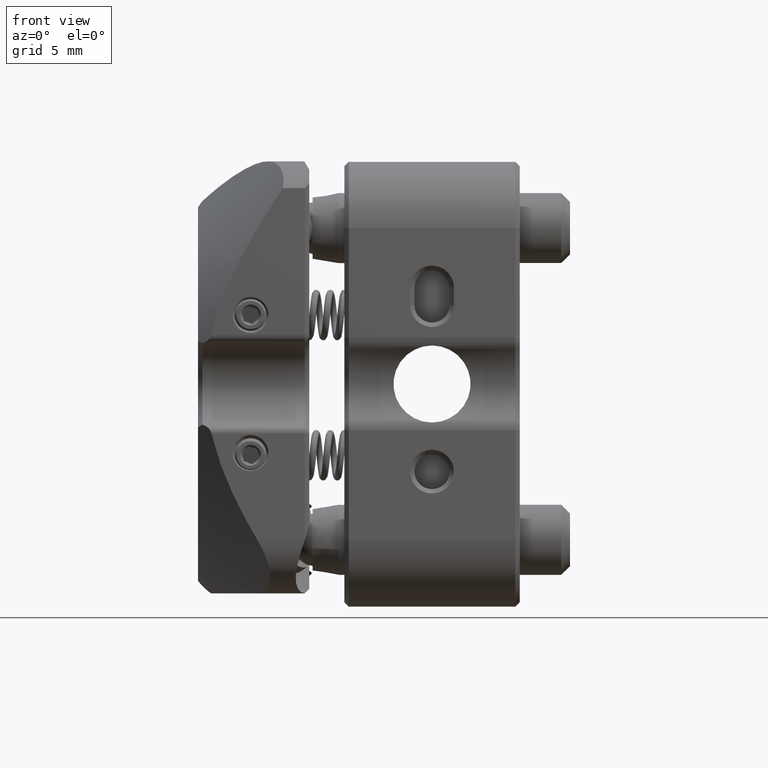
[diagram: clean part render]
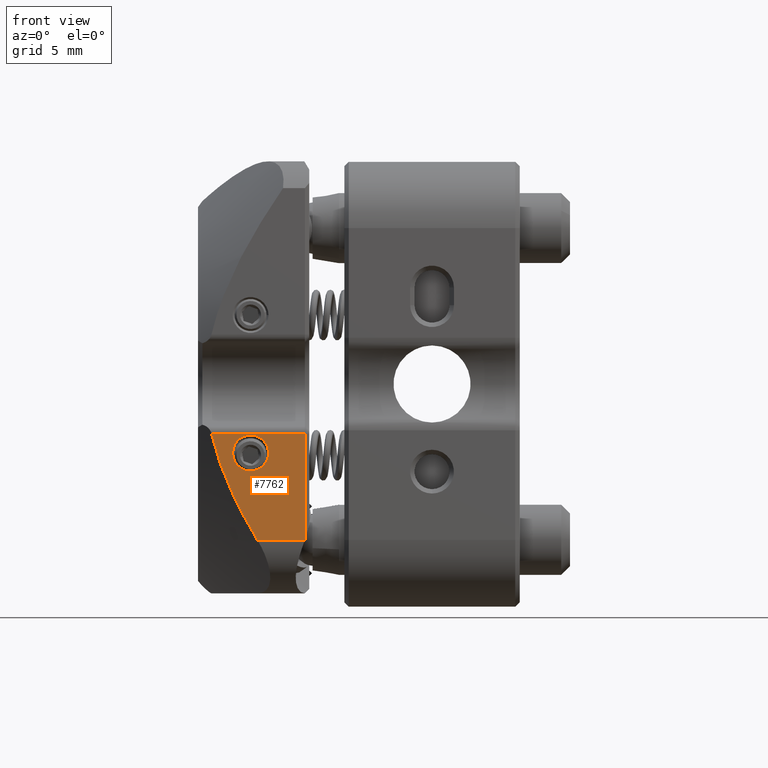
[diagram: same view with one face highlighted and labeled with its STEP entity id]
A machine part, front view. The second image highlights one B-rep face of the part: STEP entity #7762.
In plain terms, the highlighted planar face has unit normal (0, 1, 0).
Its self-contained STEP definition (entity closure, byte-faithful):
#635 = ORIENTED_EDGE ( 'NONE', *, *, #14830, .F. ) ;
#713 = EDGE_CURVE ( 'NONE', #8331, #30401, #36698, .T. ) ;
#2741 = CIRCLE ( 'NONE', #12016, 1.024999999926149208 ) ;
#3587 = CARTESIAN_POINT ( 'NONE',  ( -58.94746600689560978, -11.94000000000000128, -8.900000000000158451 ) ) ;
#3929 = EDGE_CURVE ( 'NONE', #23226, #31666, #31287, .T. ) ;
#5310 = CARTESIAN_POINT ( 'NONE',  ( -7.254598714394190573, -11.94000000000189132, -8.893816367047600480 ) ) ;
#5754 = CARTESIAN_POINT ( 'NONE',  ( -10.35000000000000142, -11.93999999996174921, -3.935000000000161258 ) ) ;
#7484 = EDGE_CURVE ( 'NONE', #31666, #16604, #12449, .T. ) ;
#7762 = ADVANCED_FACE ( 'NONE', ( #24510, #14353 ), #43868, .F. ) ;
#7938 = B_SPLINE_CURVE_WITH_KNOTS ( 'NONE', 3,
 ( #7975, #5310, #15700, #20036 ),
 .UNSPECIFIED., .F., .F.,
 ( 4, 4 ),
 ( 1.340562067596409706E-14, 1.976274407696420208E-05 ),
 .UNSPECIFIED. ) ;
#7975 = CARTESIAN_POINT ( 'NONE',  ( -7.256870038091325803, -11.93999999999999950, -8.900000000012738610 ) ) ;
#7991 = EDGE_LOOP ( 'NONE', ( #20472 ) ) ;
#8331 = VERTEX_POINT ( 'NONE', #11843 ) ;
#9785 = CARTESIAN_POINT ( 'NONE',  ( -58.94746600689560978, -11.94000000000000483, 11.17333090024185616 ) ) ;
#10089 = DIRECTION ( 'NONE',  ( 1.000000000000000000, -1.692413147416383553E-15, 0.000000000000000000 ) ) ;
#10736 = DIRECTION ( 'NONE',  ( 0.000000000000000000, 1.000000000000000000, 2.154951733599939797E-16 ) ) ;
#11641 = EDGE_CURVE ( 'NONE', #8331, #16604, #7938, .T. ) ;
#11843 = CARTESIAN_POINT ( 'NONE',  ( -7.256870038091325803, -11.93999999999999950, -8.900000000012738610 ) ) ;
#12016 = AXIS2_PLACEMENT_3D ( 'NONE', #5754, #31371, #10089 ) ;
#12263 = VECTOR ( 'NONE', #28248, 1000.000000000000000 ) ;
#12449 = LINE ( 'NONE', #47026, #24850 ) ;
#12996 = CARTESIAN_POINT ( 'NONE',  ( -9.957934998798871007, -11.94000000000000128, -8.900000000000158451 ) ) ;
#13358 = CARTESIAN_POINT ( 'NONE',  ( -7.249999999999600320, -11.93999999999957673, -2.828427124746347943 ) ) ;
#14353 = FACE_BOUND ( 'NONE', #7991, .T. ) ;
#14830 = EDGE_CURVE ( 'NONE', #30401, #23226, #15106, .T. ) ;
#15106 = B_SPLINE_CURVE_WITH_KNOTS ( 'NONE', 3,
 ( #43973, #29449, #40336, #21943, #36703, #18563 ),
 .UNSPECIFIED., .F., .F.,
 ( 4, 2, 4 ),
 ( 0.000000000000000000, 0.003306695262776504236, 0.006613390525553008471 ),
 .UNSPECIFIED. ) ;
#15700 = CARTESIAN_POINT ( 'NONE',  ( -7.252308722237509109, -11.94000000000000128, -8.887639560247853510 ) ) ;
#16604 = VERTEX_POINT ( 'NONE', #26309 ) ;
#17128 = AXIS2_PLACEMENT_3D ( 'NONE', #9785, #10736, #32018 ) ;
#17249 = EDGE_CURVE ( 'NONE', #37136, #37136, #2741, .T. ) ;
#17409 = ORIENTED_EDGE ( 'NONE', *, *, #11641, .T. ) ;
#18563 = CARTESIAN_POINT ( 'NONE',  ( -12.57956397217784072, -11.93999999999999417, -2.828427180055586465 ) ) ;
#20036 = CARTESIAN_POINT ( 'NONE',  ( -7.250000204430829598, -11.94000000000000128, -8.881469093471636711 ) ) ;
#20472 = ORIENTED_EDGE ( 'NONE', *, *, #17249, .F. ) ;
#21175 = ORIENTED_EDGE ( 'NONE', *, *, #7484, .F. ) ;
#21943 = CARTESIAN_POINT ( 'NONE',  ( -11.95257188326833386, -11.94000000000000128, -4.958886343349796277 ) ) ;
#23226 = VERTEX_POINT ( 'NONE', #23821 ) ;
#23300 = ORIENTED_EDGE ( 'NONE', *, *, #713, .F. ) ;
#23821 = CARTESIAN_POINT ( 'NONE',  ( -12.57956397217784072, -11.93999999999999417, -2.828427180055586465 ) ) ;
#24510 = FACE_OUTER_BOUND ( 'NONE', #27160, .T. ) ;
#24850 = VECTOR ( 'NONE', #35890, 1000.000000000000000 ) ;
#26309 = CARTESIAN_POINT ( 'NONE',  ( -7.250000204430829598, -11.94000000000000128, -8.881469093471636711 ) ) ;
#26690 = DIRECTION ( 'NONE',  ( 1.000000000000000000, -0.000000000000000000, -0.000000000000000000 ) ) ;
#27160 = EDGE_LOOP ( 'NONE', ( #635, #23300, #17409, #21175, #40633 ) ) ;
#28248 = DIRECTION ( 'NONE',  ( -1.000000000000000000, 0.000000000000000000, 0.000000000000000000 ) ) ;
#29449 = CARTESIAN_POINT ( 'NONE',  ( -10.52827365738660070, -11.93999999999999950, -7.945671867821916479 ) ) ;
#30401 = VERTEX_POINT ( 'NONE', #12996 ) ;
#31287 = LINE ( 'NONE', #31532, #43575 ) ;
#31371 = DIRECTION ( 'NONE',  ( -1.692413147416383355E-15, -1.000000000000000000, -3.608224830031759249E-16 ) ) ;
#31532 = CARTESIAN_POINT ( 'NONE',  ( -58.94746600689560978, -11.94000000000000128, -2.828427124746347943 ) ) ;
#31666 = VERTEX_POINT ( 'NONE', #13358 ) ;
#32018 = DIRECTION ( 'NONE',  ( 0.000000000000000000, 2.154951733599939797E-16, -1.000000000000000000 ) ) ;
#35890 = DIRECTION ( 'NONE',  ( 0.000000000000000000, 2.154951733599939797E-16, -1.000000000000000000 ) ) ;
#36181 = CARTESIAN_POINT ( 'NONE',  ( -9.325000000073853101, -11.93999999996175099, -3.935000000000161258 ) ) ;
#36698 = LINE ( 'NONE', #3587, #12263 ) ;
#36703 = CARTESIAN_POINT ( 'NONE',  ( -12.32786946210705459, -11.94000000000000306, -3.920341919445498036 ) ) ;
#37136 = VERTEX_POINT ( 'NONE', #36181 ) ;
#40336 = CARTESIAN_POINT ( 'NONE',  ( -11.05300661080758395, -11.94000000000000483, -6.971651764210592184 ) ) ;
#40633 = ORIENTED_EDGE ( 'NONE', *, *, #3929, .F. ) ;
#43575 = VECTOR ( 'NONE', #26690, 1000.000000000000000 ) ;
#43868 = PLANE ( 'NONE',  #17128 ) ;
#43973 = CARTESIAN_POINT ( 'NONE',  ( -9.957934998798871007, -11.94000000000000128, -8.900000000000158451 ) ) ;
#47026 = CARTESIAN_POINT ( 'NONE',  ( -7.250000000000025757, -11.94000000000000483, 11.17333090024185616 ) ) ;